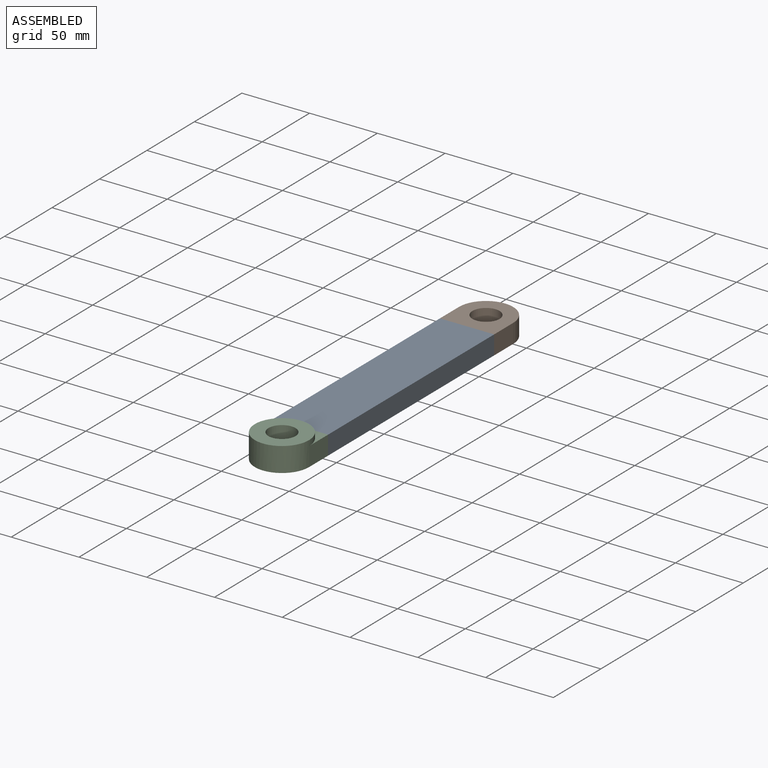
[diagram: assembled view]
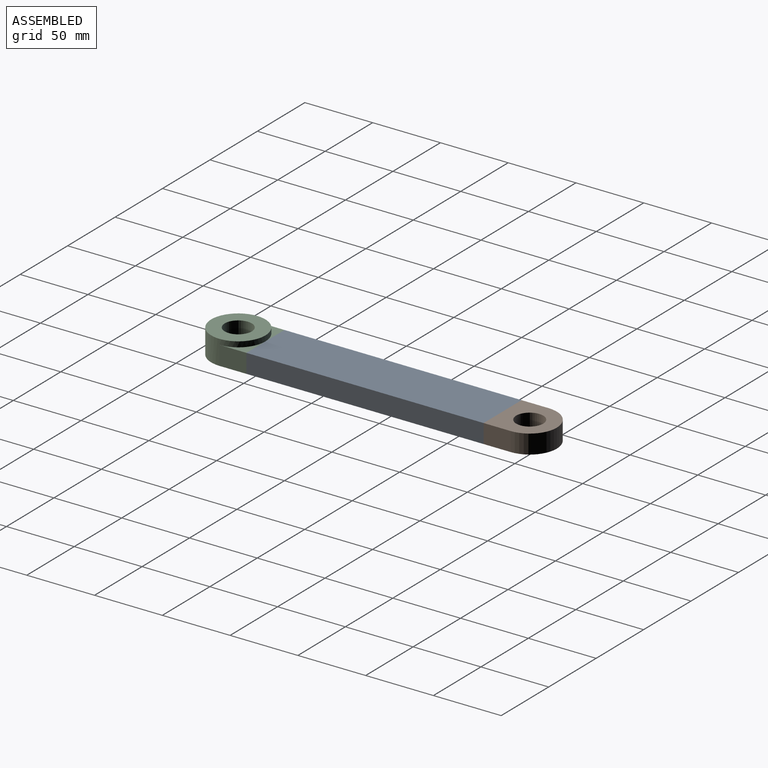
[diagram: assembled view, second angle]
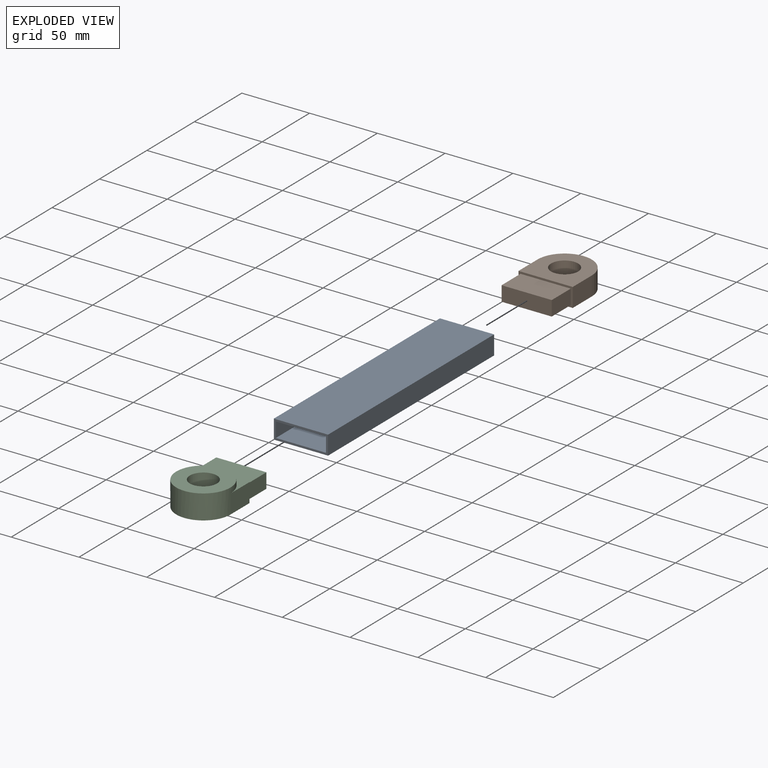
[diagram: exploded view]
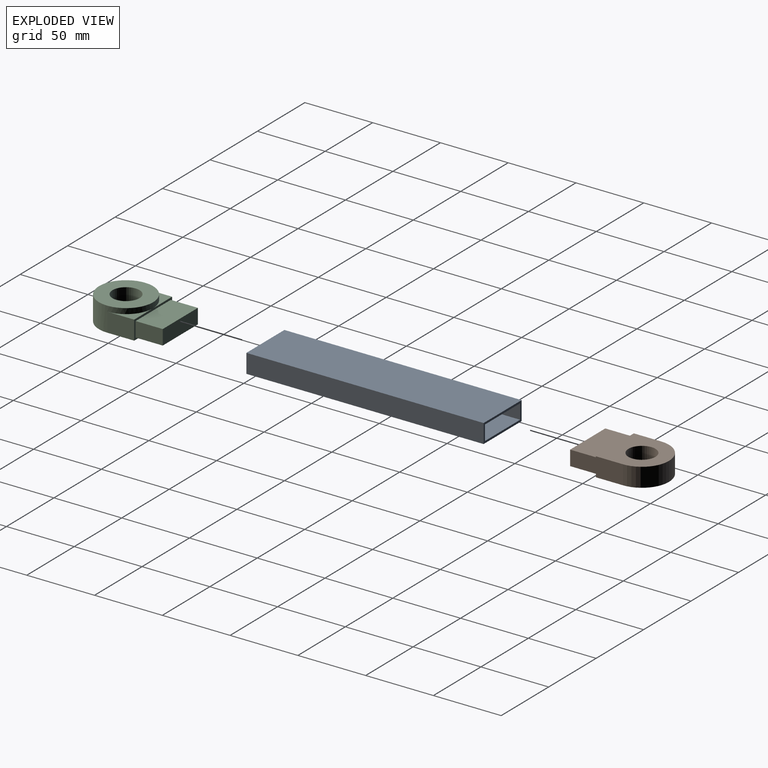
[diagram: exploded view, second angle]
ASSEMBLY  parts=3 mates=2
PART A: 10 faces, bbox 40x175x14 mm
  f0: plane 175x37mm, normal (0,0,1), area 6475mm2, adj f1,f7,f8,f9
  f1: plane 175x11mm, normal (1,0,0), area 1925mm2, adj f0,f2,f8,f9
  f2: plane 175x37mm, normal (0,0,-1), area 6475mm2, adj f1,f7,f8,f9
  f3: plane 175x14mm, normal (-1,0,0), area 2450mm2, adj f4,f6,f8,f9
  f4: plane 175x40mm, normal (0,0,-1), area 7000mm2, adj f3,f5,f8,f9
  f5: plane 175x14mm, normal (1,0,0), area 2450mm2, adj f4,f6,f8,f9
  f6: plane 175x40mm, normal (0,0,1), area 7000mm2, adj f3,f5,f8,f9
  f7: plane 175x11mm, normal (-1,0,0), area 1925mm2, adj f0,f2,f8,f9
  f8: plane 40x14mm, normal (0,1,0), area 153mm2, adj f0,f1,f2,f3,f4,f5,f6,f7
  f9: plane 40x14mm, normal (0,-1,0), area 153mm2, adj f0,f1,f2,f3,f4,f5,f6,f7
PART B: 12 faces, bbox 40x60x14 mm
  f0: plane 20x14mm, normal (-1,0,0), area 280mm2, adj f1,f4,f5,f6
  f1: plane 40x14mm, normal (0,-1,0), area 153mm2, adj f0,f2,f5,f6,f7,f8,f9,f10
  f2: plane 20x14mm, normal (1,0,0), area 280mm2, adj f1,f4,f5,f6
  f3: cylinder r=10mm len=20mm, axis (0,0,-1), area 879.6mm2, adj f5,f6
  f4: cylinder r=20mm len=40mm, axis (0,0,-1), area 879.6mm2, adj f0,f2,f5,f6
  f5: plane 40x40mm, normal (0,0,1), area 1114.2mm2, adj f0,f1,f2,f3,f4
  f6: plane 40x40mm, normal (0,0,-1), area 1114.2mm2, adj f0,f1,f2,f3,f4
  f7: plane 20x11mm, normal (-1,0,0), area 220mm2, adj f1,f8,f10,f11
  f8: plane 37x20mm, normal (0,0,-1), area 740mm2, adj f1,f7,f9,f11
  f9: plane 20x11mm, normal (1,0,0), area 220mm2, adj f1,f8,f10,f11
  f10: plane 37x20mm, normal (0,0,1), area 740mm2, adj f1,f7,f9,f11
  f11: plane 37x11mm, normal (0,-1,0), area 407mm2, adj f7,f8,f9,f10
PART C: 14 faces, bbox 40x60x18 mm
  f0: plane 20x20mm, normal (0,0,1), area 85.8mm2, adj f1,f2,f5
  f1: plane 20x14mm, normal (-1,0,0), area 280mm2, adj f0,f2,f5,f7
  f2: plane 40x14mm, normal (0,-1,0), area 153mm2, adj f0,f1,f3,f6,f7,f9,f10,f11
  f3: plane 20x14mm, normal (1,0,0), area 280mm2, adj f2,f5,f6,f7
  f4: cylinder r=10mm len=20mm, axis (0,0,-1), area 1131mm2, adj f7,f8
  f5: cylinder r=20mm len=40mm, axis (0,0,-1), area 1382.3mm2, adj f0,f1,f3,f6,f7,f8
  f6: plane 20x20mm, normal (0,0,1), area 85.8mm2, adj f2,f3,f5
  f7: plane 40x40mm, normal (0,0,-1), area 1114.2mm2, adj f1,f2,f3,f4,f5
  f8: plane 40x40mm, normal (0,0,1), area 942.5mm2, adj f4,f5
  f9: plane 20x11mm, normal (-1,0,0), area 220mm2, adj f2,f10,f12,f13
  f10: plane 37x20mm, normal (0,0,-1), area 740mm2, adj f2,f9,f11,f13
  f11: plane 20x11mm, normal (1,0,0), area 220mm2, adj f2,f10,f12,f13
  f12: plane 37x20mm, normal (0,0,1), area 740mm2, adj f2,f9,f11,f13
  f13: plane 37x11mm, normal (0,-1,0), area 407mm2, adj f9,f10,f11,f12
PLACE A t=(4.86,-51.6,25.31)mm fixed
PLACE B t=(4.86,123.4,25.31)mm
PLACE C rot(axis=(0,0,1),180deg) t=(44.86,-51.6,25.31)mm
MATE fastened C.f2 <-> A.f9  axis (0,1,0) through (44.86,-51.6,39.31)mm
MATE fastened B.f1 <-> A.f8  axis (0,1,0) through (43.36,123.4,37.81)mm
